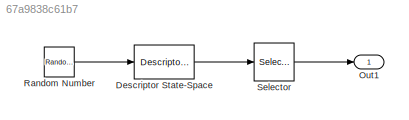
MODEL slx_67a9838c61b7
KIND model
CONFIG AbsTol = auto
CONFIG EnableMultiTasking = off
CONFIG FixedStep = 0.1
CONFIG MaxStep = auto
CONFIG MinStep = auto
CONFIG RelTol = 1e-3
CONFIG SampleTimeConstraint = Unconstrained
CONFIG SolverName = ode1be
CONFIG StartTime = 0.0
CONFIG StopTime = 10
BLOCK [DescriptorStateSpace] Descriptor State-Space
  A = -tSys.A
  B = tSys.B
  C = tSys.C
  D = tSys.D
  E = tSys.E
  InitialCondition = ICvec
  Ports = [1, 1]
BLOCK [Outport] Out1
BLOCK [RandomNumber] Random Number
  Mean = zeros(N0,1)
  SampleTime = 0.1
  Seed = 1
  Variance = 0.1 * ones(N0,1)
BLOCK [Selector] Selector
  IndexOptions = Index vector (dialog)
  Indices = 1
  InputPortWidth = N0
  OutputSizes = 1
  Ports = [1, 1]
LINE Descriptor State-Space:1 -> Selector:1
LINE Random Number:1 -> Descriptor State-Space:1
LINE Selector:1 -> Out1:1
